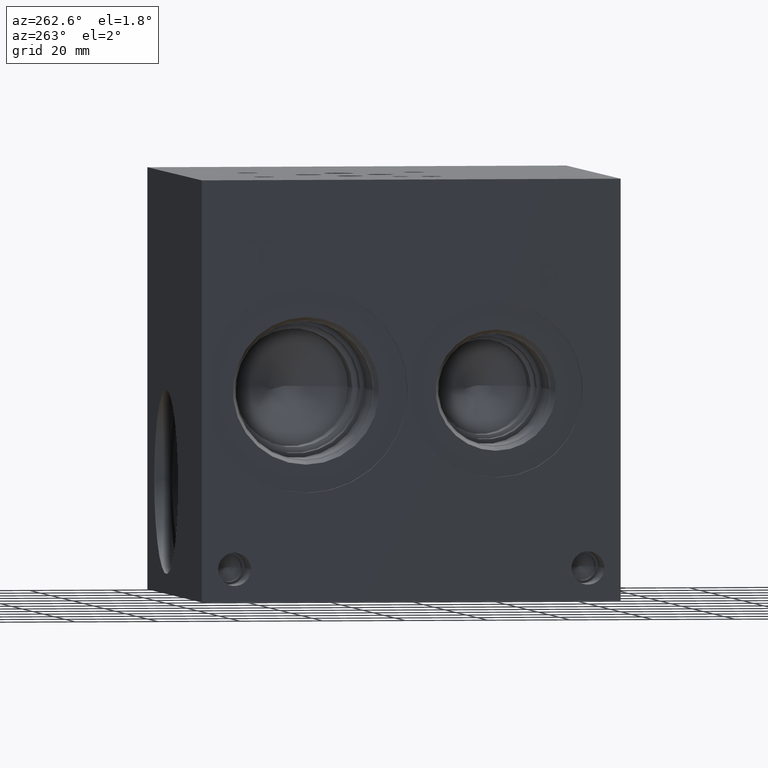
[diagram: clean part render]
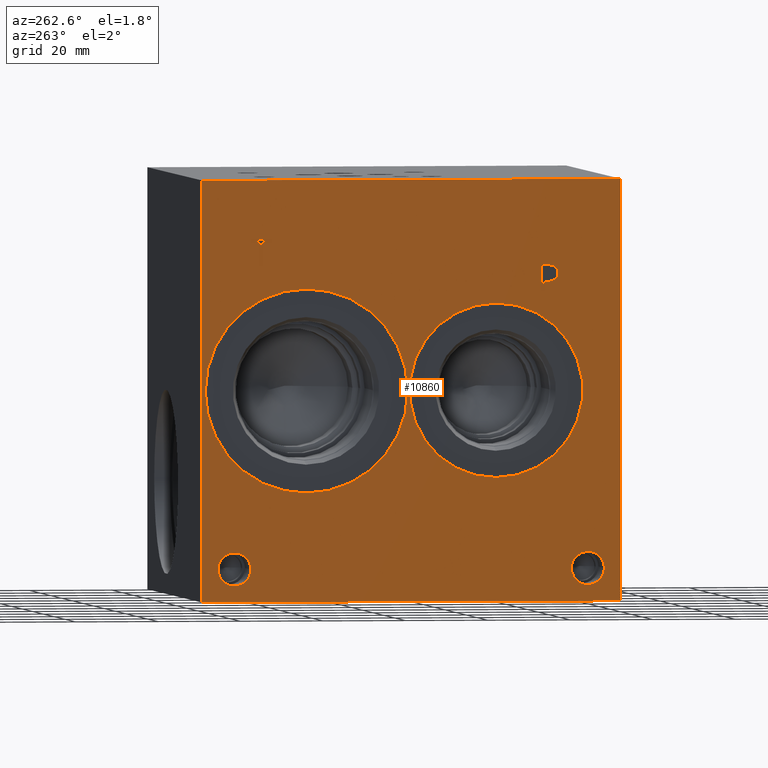
[diagram: same view with one face highlighted and labeled with its STEP entity id]
A machine part, auxiliary view. The second image highlights one B-rep face of the part: STEP entity #10860.
In plain terms, the highlighted planar face has unit normal (-1, 0, 0).
Its self-contained STEP definition (entity closure, byte-faithful):
#126=CIRCLE('',#11323,24.5618);
#127=CIRCLE('',#11324,24.5618);
#128=CIRCLE('',#11325,21.0185);
#129=CIRCLE('',#11326,21.0185);
#130=CIRCLE('',#11327,4.0005);
#131=CIRCLE('',#11328,4.0005);
#132=CIRCLE('',#11329,4.0005);
#133=CIRCLE('',#11330,4.0005);
#374=FACE_BOUND('',#1835,.T.);
#375=FACE_BOUND('',#1836,.T.);
#376=FACE_BOUND('',#1837,.T.);
#377=FACE_BOUND('',#1838,.T.);
#378=FACE_BOUND('',#1839,.T.);
#379=FACE_BOUND('',#1840,.T.);
#666=B_SPLINE_CURVE_WITH_KNOTS('',2,(#17800,#17801,#17802,#17803),
 .UNSPECIFIED.,.F.,.F.,(3,1,3),(0.,1.,2.),.UNSPECIFIED.);
#668=B_SPLINE_CURVE_WITH_KNOTS('',2,(#17821,#17822,#17823,#17824),
 .UNSPECIFIED.,.F.,.F.,(3,1,3),(0.,1.,2.),.UNSPECIFIED.);
#670=B_SPLINE_CURVE_WITH_KNOTS('',2,(#17870,#17871,#17872,#17873),
 .UNSPECIFIED.,.F.,.F.,(3,1,3),(0.,1.,2.),.UNSPECIFIED.);
#672=B_SPLINE_CURVE_WITH_KNOTS('',2,(#17888,#17889,#17890,#17891),
 .UNSPECIFIED.,.F.,.F.,(3,1,3),(0.,1.,2.),.UNSPECIFIED.);
#1231=FACE_OUTER_BOUND('',#1834,.T.);
#1834=EDGE_LOOP('',(#8802,#8803,#8804,#8805));
#1835=EDGE_LOOP('',(#8806,#8807));
#1836=EDGE_LOOP('',(#8808,#8809));
#1837=EDGE_LOOP('',(#8810,#8811));
#1838=EDGE_LOOP('',(#8812,#8813));
#1839=EDGE_LOOP('',(#8814,#8815,#8816,#8817,#8818,#8819,#8820,#8821));
#1840=EDGE_LOOP('',(#8822,#8823,#8824,#8825,#8826,#8827,#8828,#8829,#8830));
#2397=LINE('',#16456,#3416);
#2862=LINE('',#17833,#3881);
#2865=LINE('',#17839,#3884);
#2868=LINE('',#17845,#3887);
#2871=LINE('',#17851,#3890);
#2874=LINE('',#17857,#3893);
#2878=LINE('',#17899,#3897);
#2879=LINE('',#17901,#3898);
#2880=LINE('',#17902,#3899);
#2881=LINE('',#17921,#3900);
#2882=LINE('',#17923,#3901);
#2883=LINE('',#17925,#3902);
#2884=LINE('',#17927,#3903);
#2885=LINE('',#17929,#3904);
#2886=LINE('',#17931,#3905);
#2887=LINE('',#17933,#3906);
#2888=LINE('',#17934,#3907);
#3416=VECTOR('',#12227,10.);
#3881=VECTOR('',#13038,10.);
#3884=VECTOR('',#13043,10.);
#3887=VECTOR('',#13048,10.);
#3890=VECTOR('',#13053,10.);
#3893=VECTOR('',#13058,10.);
#3897=VECTOR('',#13066,10.);
#3898=VECTOR('',#13067,10.);
#3899=VECTOR('',#13068,10.);
#3900=VECTOR('',#13085,10.);
#3901=VECTOR('',#13086,10.);
#3902=VECTOR('',#13087,10.);
#3903=VECTOR('',#13088,10.);
#3904=VECTOR('',#13089,10.);
#3905=VECTOR('',#13090,10.);
#3906=VECTOR('',#13091,10.);
#3907=VECTOR('',#13092,10.);
#4455=VERTEX_POINT('',#16449);
#4458=VERTEX_POINT('',#16454);
#4815=VERTEX_POINT('',#17798);
#4816=VERTEX_POINT('',#17799);
#4819=VERTEX_POINT('',#17820);
#4821=VERTEX_POINT('',#17832);
#4823=VERTEX_POINT('',#17838);
#4825=VERTEX_POINT('',#17844);
#4827=VERTEX_POINT('',#17850);
#4829=VERTEX_POINT('',#17856);
#4831=VERTEX_POINT('',#17869);
#4833=VERTEX_POINT('',#17898);
#4834=VERTEX_POINT('',#17900);
#4835=VERTEX_POINT('',#17903);
#4836=VERTEX_POINT('',#17904);
#4837=VERTEX_POINT('',#17907);
#4838=VERTEX_POINT('',#17908);
#4839=VERTEX_POINT('',#17911);
#4840=VERTEX_POINT('',#17912);
#4841=VERTEX_POINT('',#17915);
#4842=VERTEX_POINT('',#17916);
#4843=VERTEX_POINT('',#17919);
#4844=VERTEX_POINT('',#17920);
#4845=VERTEX_POINT('',#17922);
#4846=VERTEX_POINT('',#17924);
#4847=VERTEX_POINT('',#17926);
#4848=VERTEX_POINT('',#17928);
#4849=VERTEX_POINT('',#17930);
#4850=VERTEX_POINT('',#17932);
#5688=EDGE_CURVE('',#4455,#4458,#2397,.T.);
#6208=EDGE_CURVE('',#4815,#4816,#666,.T.);
#6212=EDGE_CURVE('',#4819,#4815,#668,.T.);
#6215=EDGE_CURVE('',#4821,#4819,#2862,.T.);
#6218=EDGE_CURVE('',#4823,#4821,#2865,.T.);
#6221=EDGE_CURVE('',#4825,#4823,#2868,.T.);
#6224=EDGE_CURVE('',#4827,#4825,#2871,.T.);
#6227=EDGE_CURVE('',#4829,#4827,#2874,.T.);
#6230=EDGE_CURVE('',#4831,#4829,#670,.T.);
#6233=EDGE_CURVE('',#4816,#4831,#672,.T.);
#6235=EDGE_CURVE('',#4833,#4455,#2878,.T.);
#6236=EDGE_CURVE('',#4834,#4458,#2879,.T.);
#6237=EDGE_CURVE('',#4833,#4834,#2880,.T.);
#6238=EDGE_CURVE('',#4835,#4836,#126,.T.);
#6239=EDGE_CURVE('',#4836,#4835,#127,.T.);
#6240=EDGE_CURVE('',#4837,#4838,#128,.T.);
#6241=EDGE_CURVE('',#4838,#4837,#129,.T.);
#6242=EDGE_CURVE('',#4839,#4840,#130,.T.);
#6243=EDGE_CURVE('',#4840,#4839,#131,.T.);
#6244=EDGE_CURVE('',#4841,#4842,#132,.T.);
#6245=EDGE_CURVE('',#4842,#4841,#133,.T.);
#6246=EDGE_CURVE('',#4843,#4844,#2881,.T.);
#6247=EDGE_CURVE('',#4844,#4845,#2882,.T.);
#6248=EDGE_CURVE('',#4845,#4846,#2883,.T.);
#6249=EDGE_CURVE('',#4846,#4847,#2884,.T.);
#6250=EDGE_CURVE('',#4847,#4848,#2885,.T.);
#6251=EDGE_CURVE('',#4848,#4849,#2886,.T.);
#6252=EDGE_CURVE('',#4849,#4850,#2887,.T.);
#6253=EDGE_CURVE('',#4850,#4843,#2888,.T.);
#8802=ORIENTED_EDGE('',*,*,#6235,.T.);
#8803=ORIENTED_EDGE('',*,*,#5688,.T.);
#8804=ORIENTED_EDGE('',*,*,#6236,.F.);
#8805=ORIENTED_EDGE('',*,*,#6237,.F.);
#8806=ORIENTED_EDGE('',*,*,#6238,.T.);
#8807=ORIENTED_EDGE('',*,*,#6239,.T.);
#8808=ORIENTED_EDGE('',*,*,#6240,.T.);
#8809=ORIENTED_EDGE('',*,*,#6241,.T.);
#8810=ORIENTED_EDGE('',*,*,#6242,.T.);
#8811=ORIENTED_EDGE('',*,*,#6243,.T.);
#8812=ORIENTED_EDGE('',*,*,#6244,.T.);
#8813=ORIENTED_EDGE('',*,*,#6245,.T.);
#8814=ORIENTED_EDGE('',*,*,#6246,.T.);
#8815=ORIENTED_EDGE('',*,*,#6247,.T.);
#8816=ORIENTED_EDGE('',*,*,#6248,.T.);
#8817=ORIENTED_EDGE('',*,*,#6249,.T.);
#8818=ORIENTED_EDGE('',*,*,#6250,.T.);
#8819=ORIENTED_EDGE('',*,*,#6251,.T.);
#8820=ORIENTED_EDGE('',*,*,#6252,.T.);
#8821=ORIENTED_EDGE('',*,*,#6253,.T.);
#8822=ORIENTED_EDGE('',*,*,#6208,.T.);
#8823=ORIENTED_EDGE('',*,*,#6233,.T.);
#8824=ORIENTED_EDGE('',*,*,#6230,.T.);
#8825=ORIENTED_EDGE('',*,*,#6227,.T.);
#8826=ORIENTED_EDGE('',*,*,#6224,.T.);
#8827=ORIENTED_EDGE('',*,*,#6221,.T.);
#8828=ORIENTED_EDGE('',*,*,#6218,.T.);
#8829=ORIENTED_EDGE('',*,*,#6215,.T.);
#8830=ORIENTED_EDGE('',*,*,#6212,.T.);
#9985=PLANE('',#11322);
#10860=ADVANCED_FACE('',(#1231,#374,#375,#376,#377,#378,#379),#9985,.T.);
#11322=AXIS2_PLACEMENT_3D('',#17897,#13064,#13065);
#11323=AXIS2_PLACEMENT_3D('',#17905,#13069,#13070);
#11324=AXIS2_PLACEMENT_3D('',#17906,#13071,#13072);
#11325=AXIS2_PLACEMENT_3D('',#17909,#13073,#13074);
#11326=AXIS2_PLACEMENT_3D('',#17910,#13075,#13076);
#11327=AXIS2_PLACEMENT_3D('',#17913,#13077,#13078);
#11328=AXIS2_PLACEMENT_3D('',#17914,#13079,#13080);
#11329=AXIS2_PLACEMENT_3D('',#17917,#13081,#13082);
#11330=AXIS2_PLACEMENT_3D('',#17918,#13083,#13084);
#12227=DIRECTION('',(0.,0.,1.));
#13038=DIRECTION('',(0.,-1.,0.));
#13043=DIRECTION('',(0.,-2.79741238752512E-15,1.));
#13048=DIRECTION('',(0.,1.,0.));
#13053=DIRECTION('',(0.,1.876090699025E-15,-1.));
#13058=DIRECTION('',(0.,1.,0.));
#13064=DIRECTION('center_axis',(-1.,0.,0.));
#13065=DIRECTION('ref_axis',(0.,-1.,0.));
#13066=DIRECTION('',(0.,-1.,0.));
#13067=DIRECTION('',(0.,-1.,0.));
#13068=DIRECTION('',(0.,0.,1.));
#13069=DIRECTION('center_axis',(1.,0.,0.));
#13070=DIRECTION('ref_axis',(0.,0.,1.));
#13071=DIRECTION('center_axis',(1.,0.,0.));
#13072=DIRECTION('ref_axis',(0.,0.,1.));
#13073=DIRECTION('center_axis',(1.,0.,0.));
#13074=DIRECTION('ref_axis',(0.,0.,1.));
#13075=DIRECTION('center_axis',(1.,0.,0.));
#13076=DIRECTION('ref_axis',(0.,0.,1.));
#13077=DIRECTION('center_axis',(1.,0.,0.));
#13078=DIRECTION('ref_axis',(0.,1.,0.));
#13079=DIRECTION('center_axis',(1.,0.,0.));
#13080=DIRECTION('ref_axis',(0.,1.,0.));
#13081=DIRECTION('center_axis',(1.,0.,0.));
#13082=DIRECTION('ref_axis',(0.,1.,0.));
#13083=DIRECTION('center_axis',(1.,0.,0.));
#13084=DIRECTION('ref_axis',(0.,1.,0.));
#13085=DIRECTION('',(0.,1.,0.));
#13086=DIRECTION('',(0.,-3.17280044688051E-15,1.));
#13087=DIRECTION('',(0.,1.,0.));
#13088=DIRECTION('',(0.,0.,1.));
#13089=DIRECTION('',(0.,-1.,-3.47984565141734E-15));
#13090=DIRECTION('',(0.,0.,-1.));
#13091=DIRECTION('',(0.,1.,8.33818088455555E-15));
#13092=DIRECTION('',(0.,3.17280044688051E-15,-1.));
#16449=CARTESIAN_POINT('',(0.,0.,0.));
#16454=CARTESIAN_POINT('',(0.,0.,101.6));
#16456=CARTESIAN_POINT('',(0.,0.,0.));
#17798=CARTESIAN_POINT('',(0.,15.9431827976406,80.5662681439707));
#17799=CARTESIAN_POINT('',(0.,15.186740345468,79.0482373726039));
#17800=CARTESIAN_POINT('Ctrl Pts',(0.,15.9431827976406,80.5662681439707));
#17801=CARTESIAN_POINT('Ctrl Pts',(0.,15.5881179731514,80.3244123939564));
#17802=CARTESIAN_POINT('Ctrl Pts',(0.,15.186740345468,79.5782616758269));
#17803=CARTESIAN_POINT('Ctrl Pts',(0.,15.186740345468,79.0482373726039));
#17820=CARTESIAN_POINT('',(0.,17.6052978456117,80.9624999046326));
#17821=CARTESIAN_POINT('Ctrl Pts',(0.,17.6052978456117,80.9624999046326));
#17822=CARTESIAN_POINT('Ctrl Pts',(0.,17.0392524732376,80.9624999046326));
#17823=CARTESIAN_POINT('Ctrl Pts',(0.,16.2467889519139,80.7772486918556));
#17824=CARTESIAN_POINT('Ctrl Pts',(0.,15.9431827976406,80.5662681439707));
#17832=CARTESIAN_POINT('',(0.,19.2005166223022,80.9624999046326));
#17833=CARTESIAN_POINT('',(0.,60.4002583111511,80.9624999046326));
#17838=CARTESIAN_POINT('',(0.,19.2005166223022,74.6125));
#17839=CARTESIAN_POINT('',(0.,19.2005166223023,37.3062499999999));
#17844=CARTESIAN_POINT('',(0.,18.3565944307627,74.6125));
#17845=CARTESIAN_POINT('',(0.,59.9782972153814,74.6125));
#17850=CARTESIAN_POINT('',(0.,18.3565944307627,76.9795988299279));
#17851=CARTESIAN_POINT('',(0.,18.3565944307628,38.4897994149638));
#17856=CARTESIAN_POINT('',(0.,17.6413189147628,76.9795988299279));
#17857=CARTESIAN_POINT('',(0.,59.6206594573814,76.9795988299279));
#17869=CARTESIAN_POINT('',(0.,15.7424939837989,77.6382698086904));
#17870=CARTESIAN_POINT('Ctrl Pts',(0.,15.7424939837989,77.6382698086904));
#17871=CARTESIAN_POINT('Ctrl Pts',(0.,16.0718294731802,77.3140801863307));
#17872=CARTESIAN_POINT('Ctrl Pts',(0.,16.9620644679139,76.9795988299279));
#17873=CARTESIAN_POINT('Ctrl Pts',(0.,17.6413189147628,76.9795988299279));
#17888=CARTESIAN_POINT('Ctrl Pts',(0.,15.186740345468,79.0482373726039));
#17889=CARTESIAN_POINT('Ctrl Pts',(0.,15.186740345468,78.6365680108774));
#17890=CARTESIAN_POINT('Ctrl Pts',(0.,15.4800547656982,77.8955631597695));
#17891=CARTESIAN_POINT('Ctrl Pts',(0.,15.7424939837989,77.6382698086904));
#17897=CARTESIAN_POINT('Origin',(0.,101.6,0.));
#17898=CARTESIAN_POINT('',(0.,101.6,0.));
#17899=CARTESIAN_POINT('',(0.,101.6,0.));
#17900=CARTESIAN_POINT('',(0.,101.6,101.6));
#17901=CARTESIAN_POINT('',(0.,101.6,101.6));
#17902=CARTESIAN_POINT('',(0.,101.6,0.));
#17903=CARTESIAN_POINT('',(0.,76.2,75.3618));
#17904=CARTESIAN_POINT('',(6.93889390390723E-17,76.2,26.2382));
#17905=CARTESIAN_POINT('Origin',(0.,76.2,50.8));
#17906=CARTESIAN_POINT('Origin',(0.,76.2,50.8));
#17907=CARTESIAN_POINT('',(0.,30.1752,71.8185));
#17908=CARTESIAN_POINT('',(0.,30.1752,29.7815));
#17909=CARTESIAN_POINT('Origin',(0.,30.1752,50.8));
#17910=CARTESIAN_POINT('Origin',(0.,30.1752,50.8));
#17911=CARTESIAN_POINT('',(0.,97.6757,7.92480000000001));
#17912=CARTESIAN_POINT('',(0.,89.6747,7.92480000000001));
#17913=CARTESIAN_POINT('Origin',(0.,93.6752,7.92480000000001));
#17914=CARTESIAN_POINT('Origin',(0.,93.6752,7.92480000000001));
#17915=CARTESIAN_POINT('',(0.,11.9253,7.92480000000001));
#17916=CARTESIAN_POINT('',(0.,3.9243,7.92480000000001));
#17917=CARTESIAN_POINT('Origin',(0.,7.9248,7.92480000000001));
#17918=CARTESIAN_POINT('Origin',(0.,7.9248,7.92480000000001));
#17919=CARTESIAN_POINT('',(0.,86.724584728547,80.9625));
#17920=CARTESIAN_POINT('',(0.,87.5685069200865,80.9625));
#17921=CARTESIAN_POINT('',(0.,94.1622923642735,80.9625));
#17922=CARTESIAN_POINT('',(0.,87.5685069200864,86.5612033194816));
#17923=CARTESIAN_POINT('',(0.,87.5685069200866,40.48125));
#17924=CARTESIAN_POINT('',(0.,89.6988958670215,86.5612033194816));
#17925=CARTESIAN_POINT('',(0.,94.5842534600432,86.5612033194816));
#17926=CARTESIAN_POINT('',(0.,89.6988958670215,87.3124999046326));
#17927=CARTESIAN_POINT('',(0.,89.6988958670215,43.2806016597408));
#17928=CARTESIAN_POINT('',(0.,84.5941957816119,87.3124999046326));
#17929=CARTESIAN_POINT('',(0.,95.6494479335106,87.3124999046326));
#17930=CARTESIAN_POINT('',(0.,84.5941957816119,86.5612033194815));
#17931=CARTESIAN_POINT('',(0.,84.5941957816119,43.6562499523163));
#17932=CARTESIAN_POINT('',(0.,86.7245847285469,86.5612033194816));
#17933=CARTESIAN_POINT('',(0.,93.0970978908056,86.5612033194816));
#17934=CARTESIAN_POINT('',(0.,86.7245847285471,43.2806016597408));